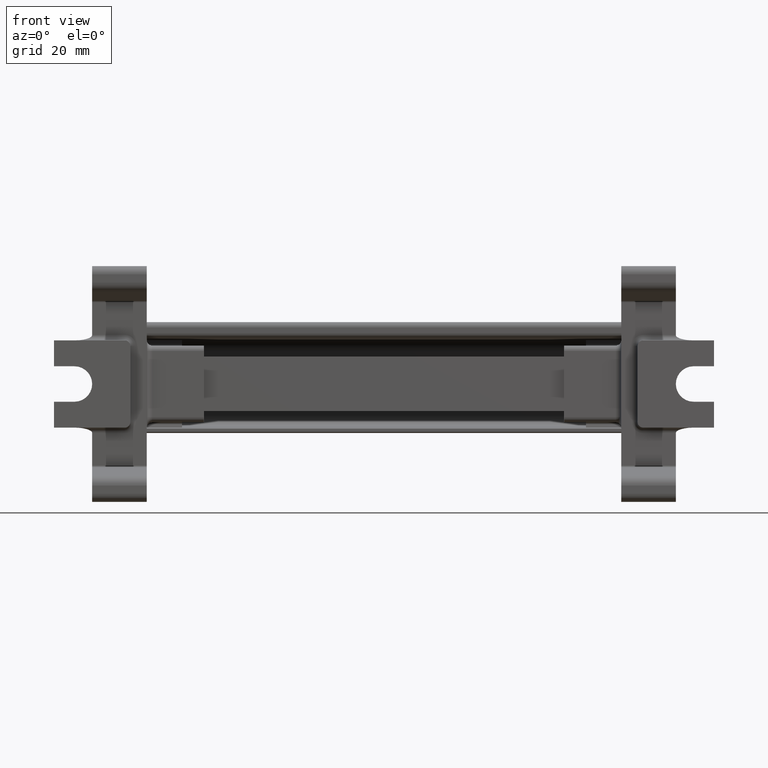
[diagram: clean part render]
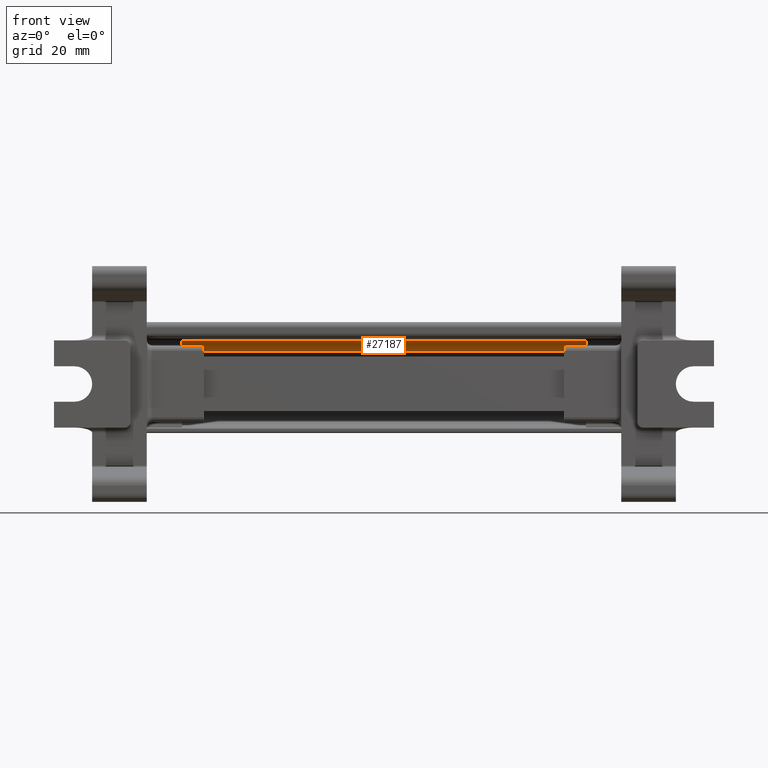
[diagram: same view with one face highlighted and labeled with its STEP entity id]
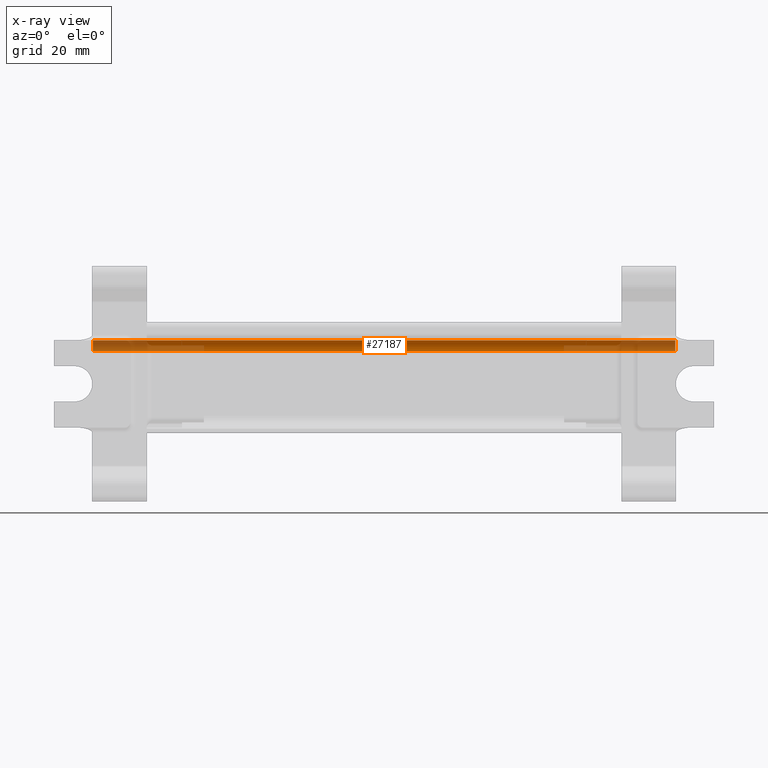
[diagram: x-ray of the same camera — body ghosted, the highlighted face saturated]
A machine part, front view. The second image highlights one B-rep face of the part: STEP entity #27187.
The next image is the same camera in x-ray: the body ghosted, the highlighted face saturated — about 29% of this face is hidden behind the body in this view.
In plain terms, the highlighted cylindrical surface (edge-blend (fillet) strip) has radius 2 mm, axis along (-1, 0, 0).
Its self-contained STEP definition (entity closure, byte-faithful):
#1030 = ORIENTED_EDGE ( 'NONE', *, *, #18408, .F. ) ;
#1046 = ORIENTED_EDGE ( 'NONE', *, *, #18588, .T. ) ;
#1066 = ORIENTED_EDGE ( 'NONE', *, *, #18403, .F. ) ;
#1107 = ORIENTED_EDGE ( 'NONE', *, *, #18385, .T. ) ;
#5209 = EDGE_LOOP ( 'NONE', ( #1030, #1066, #1107, #1046 ) ) ;
#9927 = CARTESIAN_POINT ( 'NONE',  ( 44.14730230417468700, 71.24773007458625800, 46.07394444197154800 ) ) ;
#9929 = DIRECTION ( 'NONE',  ( -1.000000000000000000, 7.897574933817846300E-015, 3.853197191115062900E-015 ) ) ;
#9955 = LINE ( 'NONE', #9927, #16469 ) ;
#11027 = AXIS2_PLACEMENT_3D ( 'NONE', #26478, #26499, #26468 ) ;
#13512 = VERTEX_POINT ( 'NONE', #21395 ) ;
#13529 = VERTEX_POINT ( 'NONE', #21466 ) ;
#13620 = VERTEX_POINT ( 'NONE', #21431 ) ;
#13666 = VERTEX_POINT ( 'NONE', #21494 ) ;
#16276 = AXIS2_PLACEMENT_3D ( 'NONE', #17383, #17402, #17403 ) ;
#16313 = CIRCLE ( 'NONE', #16276, 2.000000000000029300 ) ;
#16319 = VECTOR ( 'NONE', #17408, 1000.000000000000000 ) ;
#16320 = AXIS2_PLACEMENT_3D ( 'NONE', #17454, #17462, #17488 ) ;
#16332 = CIRCLE ( 'NONE', #16320, 2.000000000000029300 ) ;
#16469 = VECTOR ( 'NONE', #9929, 1000.000000000000000 ) ;
#17383 = CARTESIAN_POINT ( 'NONE',  ( 44.94730230417467000, 71.21282648293228600, 44.07424903034253600 ) ) ;
#17402 = DIRECTION ( 'NONE',  ( 1.000000000000000000, -7.931712594434357500E-015, -3.864784591637045400E-015 ) ) ;
#17403 = DIRECTION ( 'NONE',  ( 6.938893903907126600E-015, 1.000000000000000000, 0.0000000000000000000 ) ) ;
#17408 = DIRECTION ( 'NONE',  ( -1.000000000000000000, 7.897574933817846300E-015, 3.853197191115062900E-015 ) ) ;
#17419 = CARTESIAN_POINT ( 'NONE',  ( 44.14730230417472300, 73.21282648293231400, 44.07424903034257100 ) ) ;
#17428 = LINE ( 'NONE', #17419, #16319 ) ;
#17454 = CARTESIAN_POINT ( 'NONE',  ( -61.85269769582527000, 71.21282648293311000, 44.07424903034294800 ) ) ;
#17462 = DIRECTION ( 'NONE',  ( 1.000000000000000000, -7.931712594434357500E-015, -3.864784591637045400E-015 ) ) ;
#17488 = DIRECTION ( 'NONE',  ( 6.938893903907126600E-015, 1.000000000000000000, 0.0000000000000000000 ) ) ;
#18385 = EDGE_CURVE ( 'NONE', #13529, #13512, #16313, .T. ) ;
#18403 = EDGE_CURVE ( 'NONE', #13529, #13620, #17428, .T. ) ;
#18408 = EDGE_CURVE ( 'NONE', #13620, #13666, #16332, .T. ) ;
#18588 = EDGE_CURVE ( 'NONE', #13512, #13666, #9955, .T. ) ;
#21395 = CARTESIAN_POINT ( 'NONE',  ( 44.94730230417468400, 71.24773007458625800, 46.07394444197154800 ) ) ;
#21431 = CARTESIAN_POINT ( 'NONE',  ( -61.85269769582526300, 73.21282648293315300, 44.07424903034298300 ) ) ;
#21466 = CARTESIAN_POINT ( 'NONE',  ( 44.94730230417469100, 73.21282648293231400, 44.07424903034257100 ) ) ;
#21494 = CARTESIAN_POINT ( 'NONE',  ( -61.85269769582525600, 71.24773007458709600, 46.07394444197196000 ) ) ;
#26458 = CYLINDRICAL_SURFACE ( 'NONE', #11027, 2.000000000000034600 ) ;
#26468 = DIRECTION ( 'NONE',  ( 3.469446951953554200E-015, -6.107034461466548000E-007, 0.9999999999998135900 ) ) ;
#26478 = CARTESIAN_POINT ( 'NONE',  ( 44.14730230417468700, 71.21282648293228600, 44.07424903034253600 ) ) ;
#26483 = FACE_OUTER_BOUND ( 'NONE', #5209, .T. ) ;
#26499 = DIRECTION ( 'NONE',  ( -1.000000000000000000, 7.897574933817846300E-015, 3.853197191115062900E-015 ) ) ;
#27187 = ADVANCED_FACE ( 'NONE', ( #26483 ), #26458, .F. ) ;